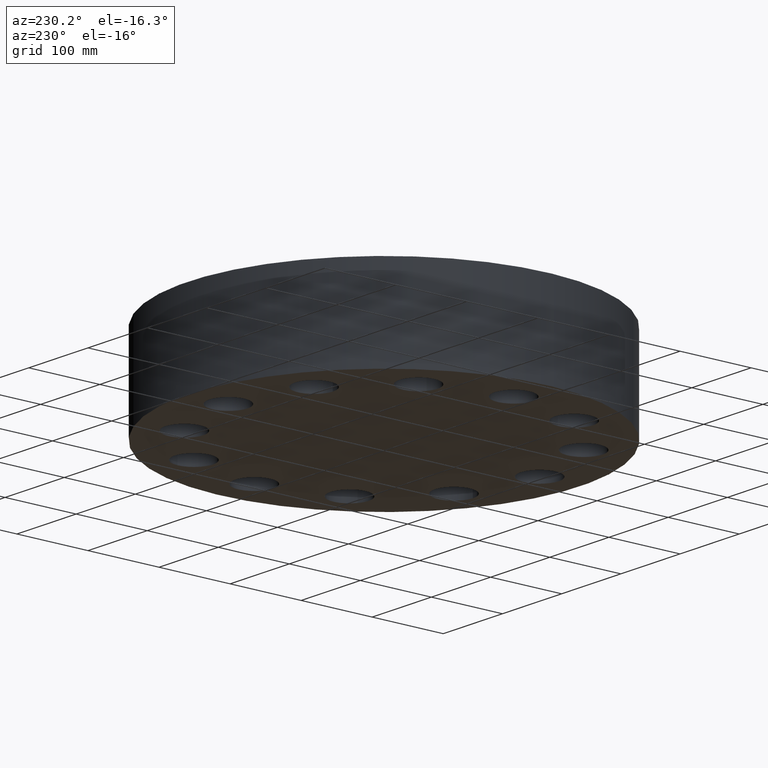
[diagram: clean part render]
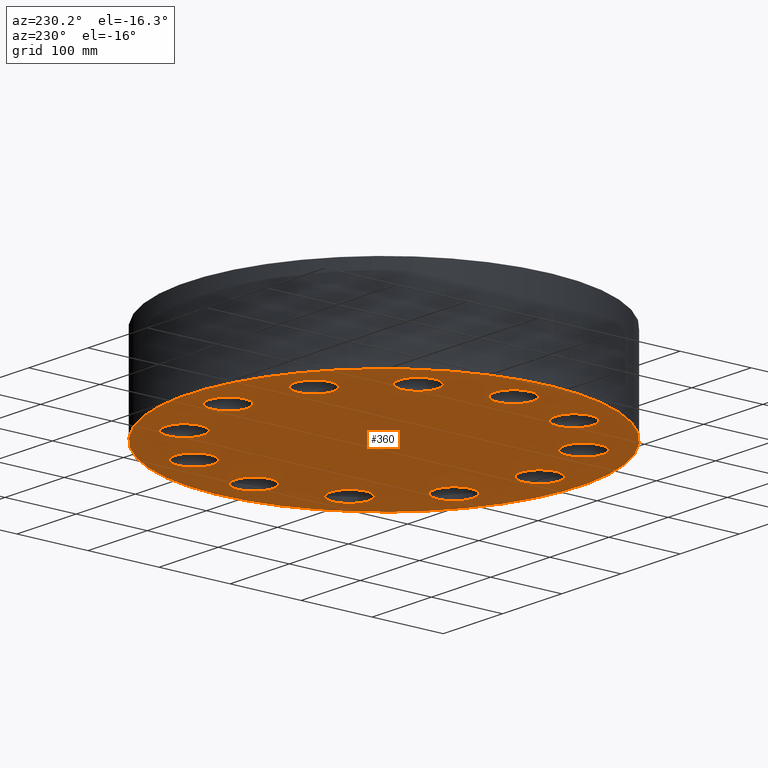
[diagram: same view with one face highlighted and labeled with its STEP entity id]
A machine part, auxiliary view. The second image highlights one B-rep face of the part: STEP entity #360.
In plain terms, the highlighted planar face has unit normal (0, 0, -1).
Its self-contained STEP definition (entity closure, byte-faithful):
#51=AXIS2_PLACEMENT_3D('Circle Axis2P3D',#49,#50,$) ;
#77=AXIS2_PLACEMENT_3D('Circle Axis2P3D',#75,#76,$) ;
#99=AXIS2_PLACEMENT_3D('Circle Axis2P3D',#97,#98,$) ;
#134=AXIS2_PLACEMENT_3D('Circle Axis2P3D',#132,#133,$) ;
#152=AXIS2_PLACEMENT_3D('Plane Axis2P3D',#149,#150,#151) ;
#164=AXIS2_PLACEMENT_3D('Circle Axis2P3D',#162,#163,$) ;
#173=AXIS2_PLACEMENT_3D('Circle Axis2P3D',#171,#172,$) ;
#182=AXIS2_PLACEMENT_3D('Circle Axis2P3D',#180,#181,$) ;
#191=AXIS2_PLACEMENT_3D('Circle Axis2P3D',#189,#190,$) ;
#200=AXIS2_PLACEMENT_3D('Circle Axis2P3D',#198,#199,$) ;
#209=AXIS2_PLACEMENT_3D('Circle Axis2P3D',#207,#208,$) ;
#218=AXIS2_PLACEMENT_3D('Circle Axis2P3D',#216,#217,$) ;
#227=AXIS2_PLACEMENT_3D('Circle Axis2P3D',#225,#226,$) ;
#236=AXIS2_PLACEMENT_3D('Circle Axis2P3D',#234,#235,$) ;
#245=AXIS2_PLACEMENT_3D('Circle Axis2P3D',#243,#244,$) ;
#254=AXIS2_PLACEMENT_3D('Circle Axis2P3D',#252,#253,$) ;
#263=AXIS2_PLACEMENT_3D('Circle Axis2P3D',#261,#262,$) ;
#272=AXIS2_PLACEMENT_3D('Circle Axis2P3D',#270,#271,$) ;
#281=AXIS2_PLACEMENT_3D('Circle Axis2P3D',#279,#280,$) ;
#290=AXIS2_PLACEMENT_3D('Circle Axis2P3D',#288,#289,$) ;
#299=AXIS2_PLACEMENT_3D('Circle Axis2P3D',#297,#298,$) ;
#308=AXIS2_PLACEMENT_3D('Circle Axis2P3D',#306,#307,$) ;
#317=AXIS2_PLACEMENT_3D('Circle Axis2P3D',#315,#316,$) ;
#326=AXIS2_PLACEMENT_3D('Circle Axis2P3D',#324,#325,$) ;
#335=AXIS2_PLACEMENT_3D('Circle Axis2P3D',#333,#334,$) ;
#344=AXIS2_PLACEMENT_3D('Circle Axis2P3D',#342,#343,$) ;
#353=AXIS2_PLACEMENT_3D('Circle Axis2P3D',#351,#352,$) ;
#44=CARTESIAN_POINT('Vertex',(7.69476248443,0.508191070922,0.)) ;
#49=CARTESIAN_POINT('Axis2P3D Location',(8.62500000003,0.,0.)) ;
#53=CARTESIAN_POINT('Vertex',(9.55523751564,-0.508191070922,0.)) ;
#75=CARTESIAN_POINT('Axis2P3D Location',(8.62500000003,0.,0.)) ;
#97=CARTESIAN_POINT('Axis2P3D Location',(0.,0.,1.1189649382E-015)) ;
#101=CARTESIAN_POINT('Vertex',(5.21375273234,9.5437103606,1.67844740731E-015)) ;
#103=CARTESIAN_POINT('Vertex',(-5.21375273234,-9.5437103606,1.67844740731E-015)) ;
#132=CARTESIAN_POINT('Axis2P3D Location',(0.,0.,1.1189649382E-015)) ;
#149=CARTESIAN_POINT('Axis2P3D Location',(0.,0.,0.)) ;
#162=CARTESIAN_POINT('Axis2P3D Location',(7.46946910767,-4.31250000002,0.)) ;
#166=CARTESIAN_POINT('Vertex',(6.91795532306,-3.40727486482,0.)) ;
#168=CARTESIAN_POINT('Vertex',(8.02098289228,-5.21772513522,0.)) ;
#171=CARTESIAN_POINT('Axis2P3D Location',(7.46946910767,-4.31250000002,0.)) ;
#180=CARTESIAN_POINT('Axis2P3D Location',(4.31250000002,-7.46946910767,0.)) ;
#184=CARTESIAN_POINT('Vertex',(4.28748761961,-6.40976425214,0.)) ;
#186=CARTESIAN_POINT('Vertex',(4.33751238043,-8.5291739632,0.)) ;
#189=CARTESIAN_POINT('Axis2P3D Location',(4.31250000002,-7.46946910767,0.)) ;
#198=CARTESIAN_POINT('Axis2P3D Location',(-8.39223703654E-016,-8.62500000003,0.)) ;
#202=CARTESIAN_POINT('Vertex',(0.508191070922,-7.69476248443,0.)) ;
#204=CARTESIAN_POINT('Vertex',(-0.508191070922,-9.55523751564,0.)) ;
#207=CARTESIAN_POINT('Axis2P3D Location',(-5.59482469102E-016,-8.62500000003,0.)) ;
#216=CARTESIAN_POINT('Axis2P3D Location',(-4.31250000002,-7.46946910767,0.)) ;
#220=CARTESIAN_POINT('Vertex',(-3.40727486482,-6.91795532306,0.)) ;
#222=CARTESIAN_POINT('Vertex',(-5.21772513522,-8.02098289228,-4.47585975282E-015)) ;
#225=CARTESIAN_POINT('Axis2P3D Location',(-4.31250000002,-7.46946910767,0.)) ;
#234=CARTESIAN_POINT('Axis2P3D Location',(-7.46946910767,-4.31250000002,0.)) ;
#238=CARTESIAN_POINT('Vertex',(-6.40976425214,-4.28748761961,0.)) ;
#240=CARTESIAN_POINT('Vertex',(-8.5291739632,-4.33751238043,0.)) ;
#243=CARTESIAN_POINT('Axis2P3D Location',(-7.46946910767,-4.31250000002,0.)) ;
#252=CARTESIAN_POINT('Axis2P3D Location',(-8.62500000003,-9.79094320929E-016,0.)) ;
#256=CARTESIAN_POINT('Vertex',(-7.69476248443,-0.508191070922,0.)) ;
#258=CARTESIAN_POINT('Vertex',(-9.55523751564,0.508191070922,0.)) ;
#261=CARTESIAN_POINT('Axis2P3D Location',(-8.62500000003,-1.1189649382E-015,0.)) ;
#270=CARTESIAN_POINT('Axis2P3D Location',(-7.46946910767,4.31250000002,0.)) ;
#274=CARTESIAN_POINT('Vertex',(-6.91795532306,3.40727486482,0.)) ;
#276=CARTESIAN_POINT('Vertex',(-8.02098289228,5.21772513522,0.)) ;
#279=CARTESIAN_POINT('Axis2P3D Location',(-7.46946910767,4.31250000002,0.)) ;
#288=CARTESIAN_POINT('Axis2P3D Location',(-4.31250000002,7.46946910767,0.)) ;
#292=CARTESIAN_POINT('Vertex',(-4.28748761961,6.40976425214,0.)) ;
#294=CARTESIAN_POINT('Vertex',(-4.33751238043,8.5291739632,0.)) ;
#297=CARTESIAN_POINT('Axis2P3D Location',(-4.31250000002,7.46946910767,0.)) ;
#306=CARTESIAN_POINT('Axis2P3D Location',(-8.39223703654E-016,8.62500000003,0.)) ;
#310=CARTESIAN_POINT('Vertex',(-0.508191070922,7.69476248443,0.)) ;
#312=CARTESIAN_POINT('Vertex',(0.508191070922,9.55523751564,0.)) ;
#315=CARTESIAN_POINT('Axis2P3D Location',(-5.59482469102E-016,8.62500000003,0.)) ;
#324=CARTESIAN_POINT('Axis2P3D Location',(4.31250000002,7.46946910767,0.)) ;
#328=CARTESIAN_POINT('Vertex',(3.40727486482,6.91795532306,0.)) ;
#330=CARTESIAN_POINT('Vertex',(5.21772513522,8.02098289228,0.)) ;
#333=CARTESIAN_POINT('Axis2P3D Location',(4.31250000002,7.46946910767,0.)) ;
#342=CARTESIAN_POINT('Axis2P3D Location',(7.46946910767,4.31250000002,0.)) ;
#346=CARTESIAN_POINT('Vertex',(6.40976425214,4.28748761961,0.)) ;
#348=CARTESIAN_POINT('Vertex',(8.5291739632,4.33751238043,0.)) ;
#351=CARTESIAN_POINT('Axis2P3D Location',(7.46946910767,4.31250000002,0.)) ;
#50=DIRECTION('Axis2P3D Direction',(0.,-0.,-0.0393700787402)) ;
#76=DIRECTION('Axis2P3D Direction',(0.,-0.,-0.0393700787402)) ;
#98=DIRECTION('Axis2P3D Direction',(0.,0.,-0.0393700787402)) ;
#133=DIRECTION('Axis2P3D Direction',(0.,0.,-0.0393700787402)) ;
#150=DIRECTION('Axis2P3D Direction',(0.,0.,-0.0393700787402)) ;
#151=DIRECTION('Axis2P3D XDirection',(0.0393700787402,0.,0.)) ;
#163=DIRECTION('Axis2P3D Direction',(0.,0.,-0.0393700787402)) ;
#172=DIRECTION('Axis2P3D Direction',(0.,0.,-0.0393700787402)) ;
#181=DIRECTION('Axis2P3D Direction',(0.,0.,-0.0393700787402)) ;
#190=DIRECTION('Axis2P3D Direction',(0.,0.,-0.0393700787402)) ;
#199=DIRECTION('Axis2P3D Direction',(0.,0.,-0.0393700787402)) ;
#208=DIRECTION('Axis2P3D Direction',(0.,0.,-0.0393700787402)) ;
#217=DIRECTION('Axis2P3D Direction',(0.,0.,-0.0393700787402)) ;
#226=DIRECTION('Axis2P3D Direction',(0.,0.,-0.0393700787402)) ;
#235=DIRECTION('Axis2P3D Direction',(0.,0.,-0.0393700787402)) ;
#244=DIRECTION('Axis2P3D Direction',(0.,0.,-0.0393700787402)) ;
#253=DIRECTION('Axis2P3D Direction',(0.,0.,-0.0393700787402)) ;
#262=DIRECTION('Axis2P3D Direction',(0.,0.,-0.0393700787402)) ;
#271=DIRECTION('Axis2P3D Direction',(0.,0.,-0.0393700787402)) ;
#280=DIRECTION('Axis2P3D Direction',(0.,0.,-0.0393700787402)) ;
#289=DIRECTION('Axis2P3D Direction',(0.,0.,-0.0393700787402)) ;
#298=DIRECTION('Axis2P3D Direction',(0.,0.,-0.0393700787402)) ;
#307=DIRECTION('Axis2P3D Direction',(0.,0.,-0.0393700787402)) ;
#316=DIRECTION('Axis2P3D Direction',(0.,0.,-0.0393700787402)) ;
#325=DIRECTION('Axis2P3D Direction',(0.,0.,-0.0393700787402)) ;
#334=DIRECTION('Axis2P3D Direction',(0.,0.,-0.0393700787402)) ;
#343=DIRECTION('Axis2P3D Direction',(0.,0.,-0.0393700787402)) ;
#352=DIRECTION('Axis2P3D Direction',(0.,0.,-0.0393700787402)) ;
#155=ORIENTED_EDGE('',*,*,#105,.T.) ;
#156=ORIENTED_EDGE('',*,*,#136,.T.) ;
#159=ORIENTED_EDGE('',*,*,#79,.F.) ;
#160=ORIENTED_EDGE('',*,*,#55,.F.) ;
#177=ORIENTED_EDGE('',*,*,#170,.F.) ;
#178=ORIENTED_EDGE('',*,*,#175,.F.) ;
#195=ORIENTED_EDGE('',*,*,#188,.F.) ;
#196=ORIENTED_EDGE('',*,*,#193,.F.) ;
#213=ORIENTED_EDGE('',*,*,#206,.F.) ;
#214=ORIENTED_EDGE('',*,*,#211,.F.) ;
#231=ORIENTED_EDGE('',*,*,#224,.F.) ;
#232=ORIENTED_EDGE('',*,*,#229,.F.) ;
#249=ORIENTED_EDGE('',*,*,#242,.F.) ;
#250=ORIENTED_EDGE('',*,*,#247,.F.) ;
#267=ORIENTED_EDGE('',*,*,#260,.F.) ;
#268=ORIENTED_EDGE('',*,*,#265,.F.) ;
#285=ORIENTED_EDGE('',*,*,#278,.F.) ;
#286=ORIENTED_EDGE('',*,*,#283,.F.) ;
#303=ORIENTED_EDGE('',*,*,#296,.F.) ;
#304=ORIENTED_EDGE('',*,*,#301,.F.) ;
#321=ORIENTED_EDGE('',*,*,#314,.F.) ;
#322=ORIENTED_EDGE('',*,*,#319,.F.) ;
#339=ORIENTED_EDGE('',*,*,#332,.F.) ;
#340=ORIENTED_EDGE('',*,*,#337,.F.) ;
#357=ORIENTED_EDGE('',*,*,#350,.F.) ;
#358=ORIENTED_EDGE('',*,*,#355,.F.) ;
#161=FACE_BOUND('',#158,.T.) ;
#179=FACE_BOUND('',#176,.T.) ;
#197=FACE_BOUND('',#194,.T.) ;
#215=FACE_BOUND('',#212,.T.) ;
#233=FACE_BOUND('',#230,.T.) ;
#251=FACE_BOUND('',#248,.T.) ;
#269=FACE_BOUND('',#266,.T.) ;
#287=FACE_BOUND('',#284,.T.) ;
#305=FACE_BOUND('',#302,.T.) ;
#323=FACE_BOUND('',#320,.T.) ;
#341=FACE_BOUND('',#338,.T.) ;
#359=FACE_BOUND('',#356,.T.) ;
#360=ADVANCED_FACE('PartBody',(#157,#161,#179,#197,#215,#233,#251,#269,#287,#305,#323,#341,#359),#153,.T.) ;
#52=CIRCLE('generated circle',#51,1.06) ;
#78=CIRCLE('generated circle',#77,1.06) ;
#100=CIRCLE('generated circle',#99,10.875) ;
#135=CIRCLE('generated circle',#134,10.875) ;
#165=CIRCLE('generated circle',#164,1.06) ;
#174=CIRCLE('generated circle',#173,1.06) ;
#183=CIRCLE('generated circle',#182,1.06) ;
#192=CIRCLE('generated circle',#191,1.06) ;
#201=CIRCLE('generated circle',#200,1.06) ;
#210=CIRCLE('generated circle',#209,1.06) ;
#219=CIRCLE('generated circle',#218,1.06) ;
#228=CIRCLE('generated circle',#227,1.06) ;
#237=CIRCLE('generated circle',#236,1.06) ;
#246=CIRCLE('generated circle',#245,1.06) ;
#255=CIRCLE('generated circle',#254,1.06) ;
#264=CIRCLE('generated circle',#263,1.06) ;
#273=CIRCLE('generated circle',#272,1.06) ;
#282=CIRCLE('generated circle',#281,1.06) ;
#291=CIRCLE('generated circle',#290,1.06) ;
#300=CIRCLE('generated circle',#299,1.06) ;
#309=CIRCLE('generated circle',#308,1.06) ;
#318=CIRCLE('generated circle',#317,1.06) ;
#327=CIRCLE('generated circle',#326,1.06) ;
#336=CIRCLE('generated circle',#335,1.06) ;
#345=CIRCLE('generated circle',#344,1.06) ;
#354=CIRCLE('generated circle',#353,1.06) ;
#55=EDGE_CURVE('',#45,#54,#52,.T.) ;
#79=EDGE_CURVE('',#54,#45,#78,.T.) ;
#105=EDGE_CURVE('',#102,#104,#100,.T.) ;
#136=EDGE_CURVE('',#104,#102,#135,.T.) ;
#170=EDGE_CURVE('',#167,#169,#165,.T.) ;
#175=EDGE_CURVE('',#169,#167,#174,.T.) ;
#188=EDGE_CURVE('',#185,#187,#183,.T.) ;
#193=EDGE_CURVE('',#187,#185,#192,.T.) ;
#206=EDGE_CURVE('',#203,#205,#201,.T.) ;
#211=EDGE_CURVE('',#205,#203,#210,.T.) ;
#224=EDGE_CURVE('',#221,#223,#219,.T.) ;
#229=EDGE_CURVE('',#223,#221,#228,.T.) ;
#242=EDGE_CURVE('',#239,#241,#237,.T.) ;
#247=EDGE_CURVE('',#241,#239,#246,.T.) ;
#260=EDGE_CURVE('',#257,#259,#255,.T.) ;
#265=EDGE_CURVE('',#259,#257,#264,.T.) ;
#278=EDGE_CURVE('',#275,#277,#273,.T.) ;
#283=EDGE_CURVE('',#277,#275,#282,.T.) ;
#296=EDGE_CURVE('',#293,#295,#291,.T.) ;
#301=EDGE_CURVE('',#295,#293,#300,.T.) ;
#314=EDGE_CURVE('',#311,#313,#309,.T.) ;
#319=EDGE_CURVE('',#313,#311,#318,.T.) ;
#332=EDGE_CURVE('',#329,#331,#327,.T.) ;
#337=EDGE_CURVE('',#331,#329,#336,.T.) ;
#350=EDGE_CURVE('',#347,#349,#345,.T.) ;
#355=EDGE_CURVE('',#349,#347,#354,.T.) ;
#154=EDGE_LOOP('',(#155,#156)) ;
#158=EDGE_LOOP('',(#159,#160)) ;
#176=EDGE_LOOP('',(#177,#178)) ;
#194=EDGE_LOOP('',(#195,#196)) ;
#212=EDGE_LOOP('',(#213,#214)) ;
#230=EDGE_LOOP('',(#231,#232)) ;
#248=EDGE_LOOP('',(#249,#250)) ;
#266=EDGE_LOOP('',(#267,#268)) ;
#284=EDGE_LOOP('',(#285,#286)) ;
#302=EDGE_LOOP('',(#303,#304)) ;
#320=EDGE_LOOP('',(#321,#322)) ;
#338=EDGE_LOOP('',(#339,#340)) ;
#356=EDGE_LOOP('',(#357,#358)) ;
#157=FACE_OUTER_BOUND('',#154,.T.) ;
#153=PLANE('',#152) ;
#45=VERTEX_POINT('',#44) ;
#54=VERTEX_POINT('',#53) ;
#102=VERTEX_POINT('',#101) ;
#104=VERTEX_POINT('',#103) ;
#167=VERTEX_POINT('',#166) ;
#169=VERTEX_POINT('',#168) ;
#185=VERTEX_POINT('',#184) ;
#187=VERTEX_POINT('',#186) ;
#203=VERTEX_POINT('',#202) ;
#205=VERTEX_POINT('',#204) ;
#221=VERTEX_POINT('',#220) ;
#223=VERTEX_POINT('',#222) ;
#239=VERTEX_POINT('',#238) ;
#241=VERTEX_POINT('',#240) ;
#257=VERTEX_POINT('',#256) ;
#259=VERTEX_POINT('',#258) ;
#275=VERTEX_POINT('',#274) ;
#277=VERTEX_POINT('',#276) ;
#293=VERTEX_POINT('',#292) ;
#295=VERTEX_POINT('',#294) ;
#311=VERTEX_POINT('',#310) ;
#313=VERTEX_POINT('',#312) ;
#329=VERTEX_POINT('',#328) ;
#331=VERTEX_POINT('',#330) ;
#347=VERTEX_POINT('',#346) ;
#349=VERTEX_POINT('',#348) ;